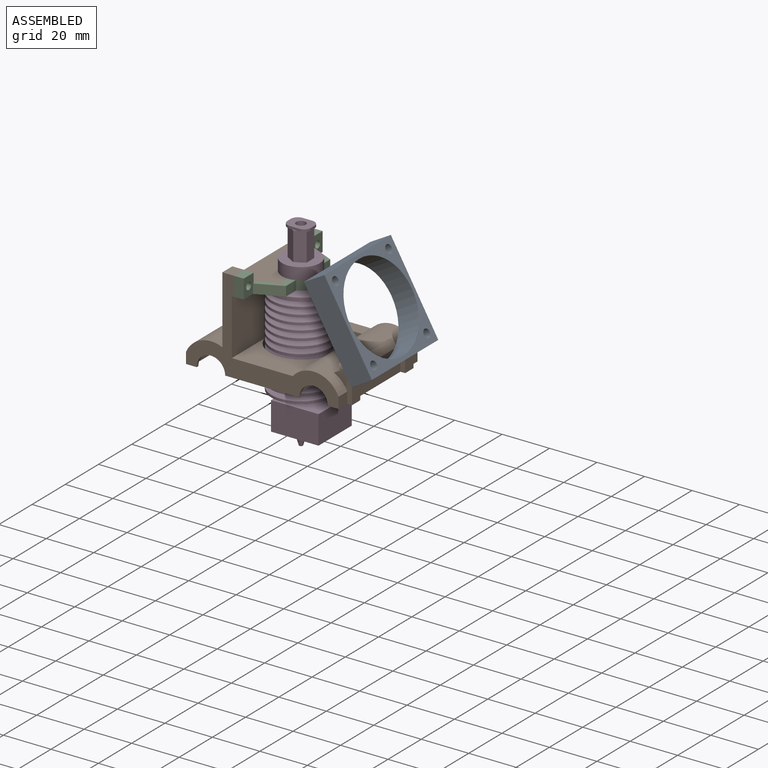
[diagram: assembled view]
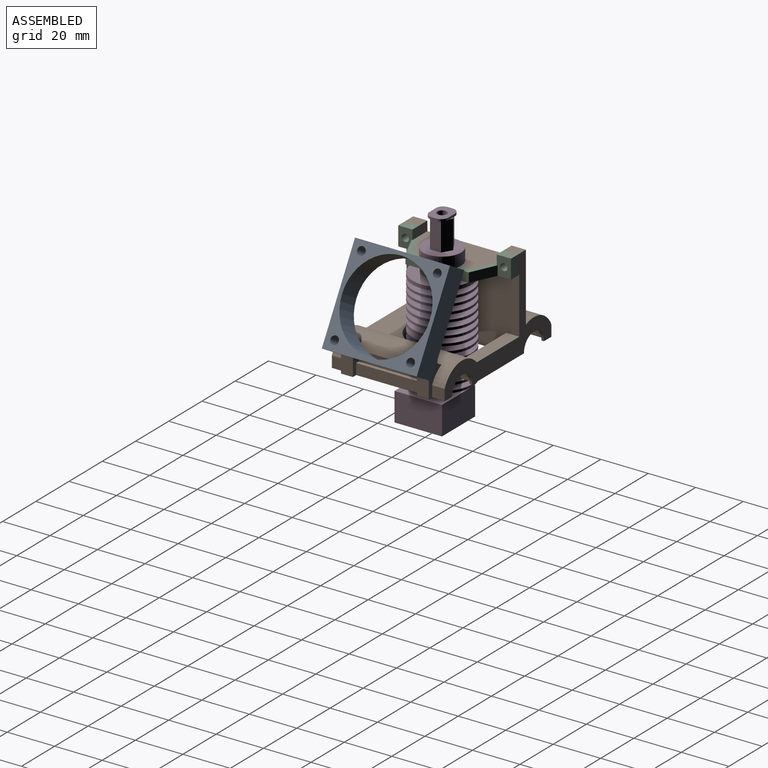
[diagram: assembled view, second angle]
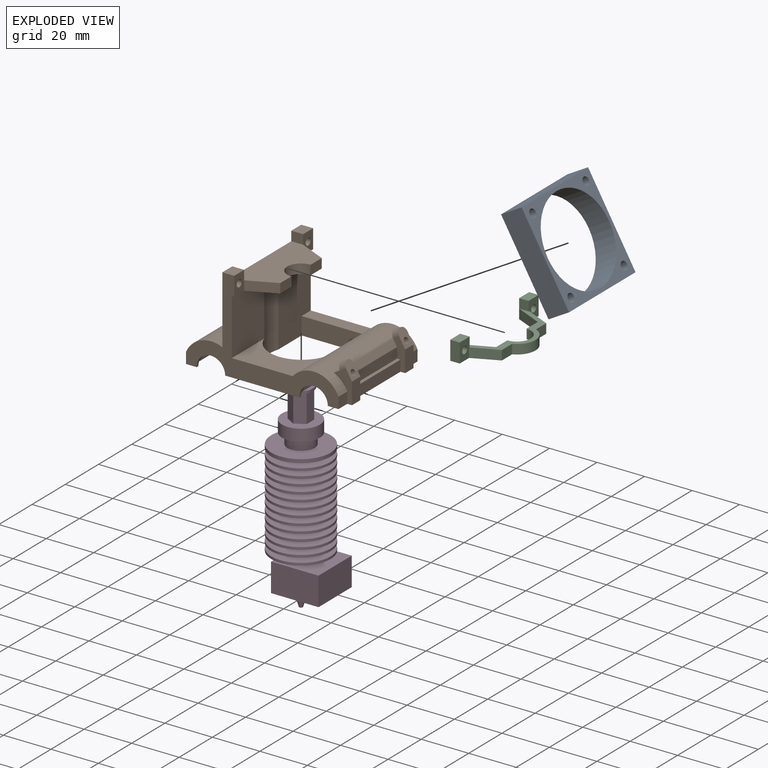
[diagram: exploded view]
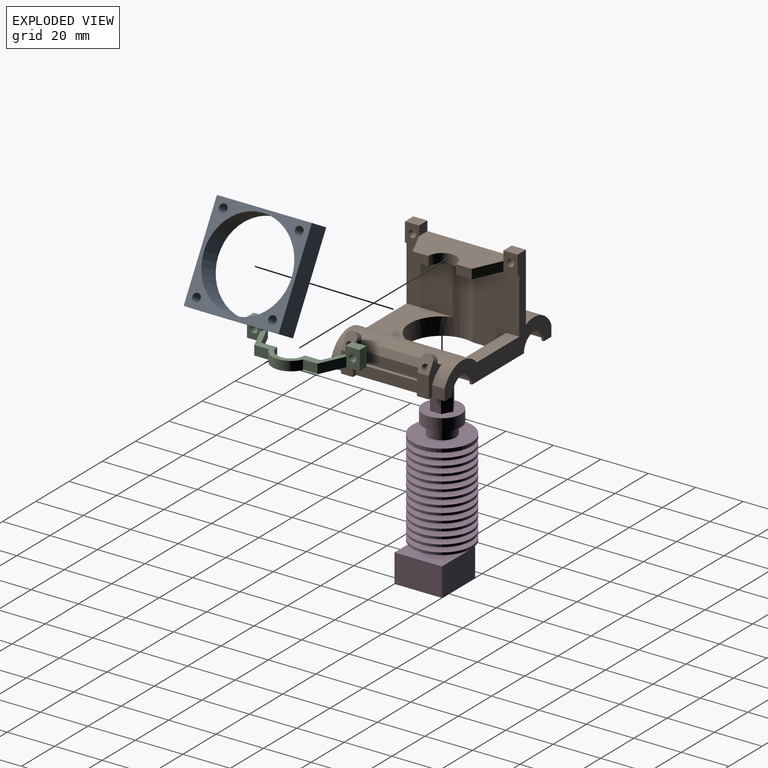
[diagram: exploded view, second angle]
ASSEMBLY  parts=4 mates=3
PART A: 11 faces, bbox 28.7x40x39.6 mm
  f0: plane 39.64x28.66mm, normal (0,-1,0), area 400mm2, adj f1,f6,f9,f10
  f1: plane 40x8.66mm, normal (0.5,0,-0.87), area 400mm2, adj f0,f2,f9,f10
  f2: plane 39.64x28.66mm, normal (0,1,0), area 400mm2, adj f1,f6,f9,f10
  f3: cylinder r=1.75mm len=10.41mm, axis (-0.87,0,-0.5), area 110mm2, adj f9,f10
  f4: cylinder r=18.5mm len=37.04mm, axis (-0.87,0,-0.5), area 1162.4mm2, adj f9,f10
  f5: cylinder r=1.75mm len=10.41mm, axis (-0.87,0,-0.5), area 110mm2, adj f9,f10
  f6: plane 40x8.66mm, normal (-0.5,0,0.87), area 400mm2, adj f0,f2,f9,f10
  f7: cylinder r=1.75mm len=10.41mm, axis (-0.87,0,-0.5), area 110mm2, adj f9,f10
  f8: cylinder r=1.75mm len=10.41mm, axis (-0.87,0,-0.5), area 110mm2, adj f9,f10
  f9: plane 40x34.64mm, normal (0.87,0,0.5), area 486.3mm2, adj f0,f1,f2,f3,f4,f5,f6,f7
  f10: plane 40x34.64mm, normal (-0.87,0,-0.5), area 486.3mm2, adj f0,f1,f2,f3,f4,f5,f6,f7
PART B: 78 faces, bbox 66.3x47.5x39 mm
  f0: plane 27x4.6mm, normal (1,0,0), area 124.2mm2, adj f26,f61,f62,f77
  f1: plane 37x2.48mm, normal (-0.5,0,0.87), area 106.2mm2, adj f2,f63,f64,f67,f73,f75
  f2: cylinder r=11.5mm len=47.5mm, axis (0,1,0), area 797.4mm2, adj f1,f3,f11,f12,f15,f28,f36,f63
  f3: plane 64.25x39mm, normal (0,1,0), area 585.9mm2, adj f2,f8,f12,f13,f14,f18,f19,f20
  f4: plane 9x5mm, normal (1,0,0), area 45mm2, adj f7,f26,f62,f64
  f5: plane 9x5mm, normal (1,0,0), area 45mm2, adj f6,f26,f61,f63
  f6: plane 6.52x5mm, normal (0.87,0,0.5), area 30mm2, adj f5,f61,f63,f70,f74
  f7: plane 6.5x5mm, normal (0.87,0,0.5), area 29.9mm2, adj f4,f62,f64,f68,f72
  f8: plane 47.5x28.55mm, normal (-1,0,0), area 1161.8mm2, adj f3,f9,f11,f20,f41,f42,f43,f44
  f9: plane 35.5x16.5mm, normal (0,0,1), area 472.5mm2, adj f8,f10,f17,f27,f38,f39,f42,f43
  f10: plane 6.7x4mm, normal (1,0,0), area 26.8mm2, adj f9,f19,f27,f38
  f11: plane 64.25x39mm, normal (0,-1,0), area 585.9mm2, adj f2,f8,f15,f16,f19,f20,f21,f22
  f12: plane 25.64x5.53mm, normal (0,0,1), area 141.7mm2, adj f2,f3,f18,f35
  f13: cylinder r=6mm len=12mm, axis (0,1,0), area 18.8mm2, adj f3,f22,f24,f34
  f14: cylinder r=6mm len=12mm, axis (0,1,0), area 18.8mm2, adj f3,f24,f26,f31
  f15: plane 25.64x19.53mm, normal (0,0,1), area 326.6mm2, adj f2,f11,f16,f28
  f16: plane 23.6x19.53mm, normal (1,0,0), area 460.8mm2, adj f11,f15,f19,f28
  f17: plane 6.7x4mm, normal (1,0,0), area 26.8mm2, adj f9,f19,f27,f39
  f18: plane 31x19.53mm, normal (1,0,0), area 564.4mm2, adj f3,f12,f19,f24,f28,f35
  f19: plane 47.5x13.18mm, normal (0,0,-1), area 346.4mm2, adj f3,f10,f11,f16,f17,f18,f27,f28
  f20: cylinder r=11.5mm len=47.5mm, axis (0,1,0), area 863.9mm2, adj f3,f8,f11,f21
  f21: plane 47.5x4.69mm, normal (-1,0,0), area 222.8mm2, adj f3,f11,f20,f22
  f22: plane 47.5x4.5mm, normal (0,0,-1), area 122.8mm2, adj f3,f11,f13,f21,f23,f32,f33,f34
  f23: cylinder r=6mm len=12mm, axis (0,1,0), area 18.8mm2, adj f11,f22,f24,f33
  f24: plane 47.5x31.25mm, normal (0,0,-1), area 544.9mm2, adj f3,f11,f13,f14,f18,f23,f25,f28
  f25: cylinder r=6mm len=12mm, axis (0,1,0), area 18.8mm2, adj f11,f24,f26,f30
  f26: plane 47.5x6.5mm, normal (0,0,-1), area 142.8mm2, adj f0,f3,f4,f5,f11,f14,f25,f29
  f27: cylinder r=5.8mm len=11.6mm, axis (0,0,1), area 72.9mm2, adj f9,f10,f17,f19
  f28: cylinder r=13.5mm len=31mm, axis (0,0,-1), area 584.5mm2, adj f2,f15,f16,f18,f19,f24,f36
  f29: cylinder r=8mm len=45.5mm, axis (0,1,0), area 1143.5mm2, adj f24,f26,f30,f31
  f30: plane 16x8mm, normal (0,1,0), area 44mm2, adj f24,f25,f26,f29
  f31: plane 16x8mm, normal (0,-1,0), area 44mm2, adj f14,f24,f26,f29
  f32: cylinder r=8mm len=45.5mm, axis (0,1,0), area 1143.5mm2, adj f22,f24,f33,f34
  f33: plane 16x8mm, normal (0,1,0), area 44mm2, adj f22,f23,f24,f32
  f34: plane 16x8mm, normal (0,-1,0), area 44mm2, adj f13,f22,f24,f32
  f35: plane 25.64x7.4mm, normal (0,-1,0), area 189.8mm2, adj f12,f18,f24,f36
  f36: plane 14x7.4mm, normal (-1,0,0), area 103.6mm2, adj f2,f24,f28,f35
  f37: plane 8x6mm, normal (1,0,0), area 40.9mm2, adj f3,f19,f38,f41,f42,f60
  f38: plane 11.5x5.25mm, normal (0.42,0.91,0), area 50.6mm2, adj f9,f10,f19,f37
  f39: plane 11.5x5.25mm, normal (0.42,-0.91,0), area 50.6mm2, adj f9,f17,f19,f40
  f40: plane 8x6mm, normal (1,0,0), area 40.9mm2, adj f11,f19,f39,f43,f44,f59
  f41: plane 6x5mm, normal (0,0,1), area 30mm2, adj f3,f8,f37,f42
  f42: plane 5x4mm, normal (0,-1,0), area 20mm2, adj f8,f9,f37,f41
  f43: plane 5x4mm, normal (0,1,0), area 20mm2, adj f8,f9,f40,f44
  f44: plane 6x5mm, normal (0,0,1), area 30mm2, adj f8,f11,f40,f43
  f45: plane 2.75x2mm, normal (0,0.5,-0.87), area 6.4mm2, adj f8,f46,f50,f51
  f46: plane 2.75x2mm, normal (0,-0.5,-0.87), area 6.4mm2, adj f8,f45,f47,f51
  f47: plane 3.18x2mm, normal (0,-1,0), area 6.4mm2, adj f8,f46,f48,f51
  f48: plane 2.75x2mm, normal (0,-0.5,0.87), area 6.4mm2, adj f8,f47,f49,f51
  f49: plane 2.75x2mm, normal (0,0.5,0.87), area 6.4mm2, adj f8,f48,f50,f51
  f50: plane 3.18x2mm, normal (0,1,0), area 6.4mm2, adj f8,f45,f49,f51
  f51: plane 6.35x5.5mm, normal (-1,0,0), area 19.1mm2, adj f45,f46,f47,f48,f49,f50,f60
  f52: plane 3.18x2mm, normal (0,1,-0.01), area 6.4mm2, adj f8,f53,f57,f58
  f53: plane 2.77x2mm, normal (0,0.49,-0.87), area 6.4mm2, adj f8,f52,f54,f58
  f54: plane 2.73x2mm, normal (0,-0.51,-0.86), area 6.4mm2, adj f8,f53,f55,f58
  f55: plane 3.18x2mm, normal (0,-1,0.01), area 6.4mm2, adj f8,f54,f56,f58
  f56: plane 2.77x2mm, normal (0,-0.49,0.87), area 6.4mm2, adj f8,f55,f57,f58
  f57: plane 2.73x2mm, normal (0,0.51,0.86), area 6.4mm2, adj f8,f52,f56,f58
  f58: plane 6.35x5.54mm, normal (-1,0,0), area 19.1mm2, adj f52,f53,f54,f55,f56,f57,f59
  f59: cylinder r=1.5mm len=3mm, axis (-1,0,0), area 28.3mm2, adj f40,f58
  f60: cylinder r=1.5mm len=3mm, axis (-1,0,0), area 28.3mm2, adj f37,f51
  f61: plane 13.33x5.1mm, normal (0,-1,0), area 36.8mm2, adj f0,f5,f6,f26,f67,f74,f76,f77
  f62: plane 13.33x5.1mm, normal (0,1,0), area 36.8mm2, adj f0,f4,f7,f26,f67,f72,f76,f77
  f63: plane 13.33x7.58mm, normal (0,1,0), area 42.3mm2, adj f1,f2,f5,f6,f26,f66,f74
  f64: plane 13.33x7.58mm, normal (0,-1,0), area 42.3mm2, adj f1,f2,f4,f7,f26,f65,f72
  f65: plane 5.25x4.69mm, normal (1,0,0), area 24.6mm2, adj f2,f11,f26,f64
  f66: plane 5.25x4.69mm, normal (1,0,0), area 24.6mm2, adj f2,f3,f26,f63
  f67: plane 27x2.83mm, normal (0.87,0,0.5), area 88.2mm2, adj f1,f61,f62,f76
  f68: cylinder r=1.25mm len=3.85mm, axis (0.87,0,0.5), area 23.6mm2, adj f7,f69
  f69: plane 2.5x2.17mm, normal (0.87,0,0.5), area 4.9mm2, adj f68
  f70: cylinder r=1.25mm len=3.85mm, axis (0.87,0,0.5), area 23.6mm2, adj f6,f71
  f71: plane 2.5x2.17mm, normal (0.87,0,0.5), area 4.9mm2, adj f70
  f72: cylinder r=2.5mm len=5mm, axis (0.87,0,0.5), area 23.6mm2, adj f7,f62,f64,f73
  f73: plane 5x2.17mm, normal (-0.87,0,-0.5), area 9.8mm2, adj f1,f72
  f74: cylinder r=2.5mm len=5mm, axis (0.87,0,0.5), area 23.7mm2, adj f6,f61,f63,f75
  f75: plane 5x2.19mm, normal (-0.87,0,-0.5), area 10mm2, adj f1,f74
  f76: plane 27x4.4mm, normal (1,0,0), area 118.8mm2, adj f61,f62,f67,f77
  f77: plane 27x1.46mm, normal (0,0,1), area 39.5mm2, adj f0,f61,f62,f76
PART C: 24 faces, bbox 19.3x47.5x8 mm
  f0: plane 36.25x19.3mm, normal (0,0,1), area 121.5mm2, adj f2,f3,f4,f7,f8,f9,f10,f11
  f1: plane 47.5x19.3mm, normal (0,0,-1), area 169.5mm2, adj f2,f3,f4,f5,f6,f7,f8,f9
  f2: cylinder r=5.8mm len=11.6mm, axis (0,0,1), area 72.9mm2, adj f0,f1,f3,f15
  f3: plane 6.7x4mm, normal (-1,0,0), area 26.8mm2, adj f0,f1,f2,f4
  f4: plane 11.5x5.25mm, normal (-0.42,0.91,0), area 50.6mm2, adj f0,f1,f3,f5
  f5: plane 8x6mm, normal (-1,0,0), area 40.9mm2, adj f1,f4,f6,f18,f19,f23
  f6: plane 8x4mm, normal (0,-1,0), area 32mm2, adj f1,f5,f7,f18
  f7: plane 8x6mm, normal (1,0,0), area 39.4mm2, adj f0,f1,f6,f8,f18,f19,f23
  f8: plane 10.5x4.79mm, normal (0.42,-0.91,0), area 46.2mm2, adj f0,f1,f7,f9
  f9: plane 6.13x4mm, normal (1,0,0), area 24.5mm2, adj f0,f1,f8,f10
  f10: cylinder r=7.8mm len=14.4mm, axis (0,0,1), area 73.4mm2, adj f0,f1,f9,f11
  f11: plane 6.13x4mm, normal (1,0,0), area 24.5mm2, adj f0,f1,f10,f12
  f12: plane 10.5x4.79mm, normal (0.42,0.91,0), area 46.2mm2, adj f0,f1,f11,f13
  f13: plane 8x6mm, normal (1,0,0), area 39.4mm2, adj f0,f1,f12,f14,f20,f21,f22
  f14: plane 8x4mm, normal (0,1,0), area 32mm2, adj f1,f13,f16,f20
  f15: plane 6.7x4mm, normal (-1,0,0), area 26.8mm2, adj f0,f1,f2,f17
  f16: plane 8x6mm, normal (-1,0,0), area 40.9mm2, adj f1,f14,f17,f20,f21,f22
  f17: plane 11.5x5.25mm, normal (-0.42,-0.91,0), area 50.6mm2, adj f0,f1,f15,f16
  f18: plane 6x4mm, normal (0,0,1), area 24mm2, adj f5,f6,f7,f19
  f19: plane 4x4mm, normal (0,1,0), area 16mm2, adj f0,f5,f7,f18
  f20: plane 6x4mm, normal (0,0,1), area 24mm2, adj f13,f14,f16,f21
  f21: plane 4x4mm, normal (0,-1,0), area 16mm2, adj f0,f13,f16,f20
  f22: cylinder r=1.5mm len=4mm, axis (1,0,0), area 37.7mm2, adj f13,f16
  f23: cylinder r=1.5mm len=4mm, axis (1,0,0), area 37.7mm2, adj f5,f7
PART D: 89 faces, bbox 26.9x25x84.5 mm
  f0: plane 2.14x0.62mm, normal (0,0,1), area 0.7mm2, adj f69,f70,f82
  f1: plane 20x12mm, normal (-1,0,0), area 240mm2, adj f2,f4,f5,f6
  f2: plane 20x12mm, normal (0,-1,0), area 240mm2, adj f1,f3,f5,f6
  f3: plane 20x12mm, normal (1,0,0), area 240mm2, adj f2,f4,f5,f6
  f4: plane 20x12mm, normal (0,1,0), area 240mm2, adj f1,f3,f5,f6
  f5: plane 20x20mm, normal (0,0,1), area 392mm2, adj f1,f2,f3,f4,f7
  f6: plane 20x20mm, normal (0,0,-1), area 372.6mm2, adj f1,f2,f3,f4,f68
  f7: cylinder r=1.6mm len=3.2mm, axis (0,0,-1), area 20.1mm2, adj f5,f8
  f8: plane 25x25mm, normal (0,0,-1), area 482.8mm2, adj f7,f9
  f9: cylinder r=12.5mm len=25mm, axis (0,0,1), area 78.5mm2, adj f8,f10
  f10: plane 25x25mm, normal (0,0,1), area 387.4mm2, adj f9,f11
  f11: cylinder r=5.74mm len=11.48mm, axis (0,0,1), area 72.1mm2, adj f10,f12
  f12: plane 25x25mm, normal (0,0,-1), area 387.4mm2, adj f11,f13
  f13: cylinder r=12.5mm len=25mm, axis (0,0,1), area 78.5mm2, adj f12,f14
  f14: plane 25x25mm, normal (0,0,1), area 387.4mm2, adj f13,f15
  f15: cylinder r=5.74mm len=11.48mm, axis (0,0,1), area 72.1mm2, adj f14,f16
  f16: plane 25x25mm, normal (0,0,-1), area 387.4mm2, adj f15,f17
  f17: cylinder r=12.5mm len=25mm, axis (0,0,1), area 78.5mm2, adj f16,f18
  f18: plane 25x25mm, normal (0,0,1), area 387.4mm2, adj f17,f19
  f19: cylinder r=5.74mm len=11.48mm, axis (0,0,1), area 72.1mm2, adj f18,f20
  f20: plane 25x25mm, normal (0,0,-1), area 387.4mm2, adj f19,f21
  f21: cylinder r=12.5mm len=25mm, axis (0,0,1), area 78.5mm2, adj f20,f22
  f22: plane 25x25mm, normal (0,0,1), area 387.4mm2, adj f21,f23
  f23: cylinder r=5.74mm len=11.48mm, axis (0,0,1), area 72.1mm2, adj f22,f24
  f24: plane 25x25mm, normal (0,0,-1), area 387.4mm2, adj f23,f25
  f25: cylinder r=12.5mm len=25mm, axis (0,0,1), area 78.5mm2, adj f24,f26
  f26: plane 25x25mm, normal (0,0,1), area 387.4mm2, adj f25,f27
  f27: cylinder r=5.74mm len=11.48mm, axis (0,0,1), area 72.1mm2, adj f26,f28
  f28: plane 25x25mm, normal (0,0,-1), area 387.4mm2, adj f27,f29
  f29: cylinder r=12.5mm len=25mm, axis (0,0,1), area 78.5mm2, adj f28,f30
  f30: plane 25x25mm, normal (0,0,1), area 387.4mm2, adj f29,f31
  f31: cylinder r=5.74mm len=11.48mm, axis (0,0,1), area 72.1mm2, adj f30,f32
  f32: plane 25x25mm, normal (0,0,-1), area 387.4mm2, adj f31,f33
  f33: cylinder r=12.5mm len=25mm, axis (0,0,1), area 78.5mm2, adj f32,f34
  f34: plane 25x25mm, normal (0,0,1), area 387.4mm2, adj f33,f35
  f35: cylinder r=5.74mm len=11.48mm, axis (0,0,1), area 72.1mm2, adj f34,f36
  f36: plane 25x25mm, normal (0,0,-1), area 387.4mm2, adj f35,f37
  f37: cylinder r=12.5mm len=25mm, axis (0,0,1), area 78.5mm2, adj f36,f38
  f38: plane 25x25mm, normal (0,0,1), area 387.4mm2, adj f37,f39
  f39: cylinder r=5.74mm len=11.48mm, axis (0,0,1), area 72.1mm2, adj f38,f40
  f40: plane 25x25mm, normal (0,0,-1), area 387.4mm2, adj f39,f41
  f41: cylinder r=12.5mm len=25mm, axis (0,0,1), area 78.5mm2, adj f40,f42
  f42: plane 25x25mm, normal (0,0,1), area 387.4mm2, adj f41,f43
  f43: cylinder r=5.74mm len=11.48mm, axis (0,0,1), area 72.1mm2, adj f42,f44
  f44: plane 25x25mm, normal (0,0,-1), area 387.4mm2, adj f43,f45
  f45: cylinder r=12.5mm len=25mm, axis (0,0,1), area 78.5mm2, adj f44,f46
  f46: plane 25x25mm, normal (0,0,1), area 387.4mm2, adj f45,f47
  f47: cylinder r=5.74mm len=11.48mm, axis (0,0,1), area 72.1mm2, adj f46,f48
  f48: plane 25x25mm, normal (0,0,-1), area 387.4mm2, adj f47,f49
  f49: cylinder r=12.5mm len=25mm, axis (0,0,1), area 78.5mm2, adj f48,f50
  f50: plane 25x25mm, normal (0,0,1), area 387.4mm2, adj f49,f51
  f51: cylinder r=5.74mm len=11.48mm, axis (0,0,1), area 72.1mm2, adj f50,f52
  f52: plane 25x25mm, normal (0,0,-1), area 387.4mm2, adj f51,f53
  f53: cylinder r=12.5mm len=25mm, axis (0,0,1), area 78.5mm2, adj f52,f54
  f54: plane 25x25mm, normal (0,0,1), area 387.4mm2, adj f53,f55
  f55: cylinder r=5.74mm len=11.48mm, axis (0,0,1), area 72.1mm2, adj f54,f56
  f56: plane 25x25mm, normal (0,0,-1), area 387.4mm2, adj f55,f57
  f57: cylinder r=12.5mm len=25mm, axis (0,0,1), area 78.5mm2, adj f56,f58
  f58: plane 25x25mm, normal (0,0,1), area 387.4mm2, adj f57,f59
  f59: cylinder r=5.74mm len=11.48mm, axis (0,0,1), area 72.1mm2, adj f58,f60
  f60: plane 25x25mm, normal (0,0,-1), area 387.4mm2, adj f59,f61
  f61: cylinder r=12.5mm len=25mm, axis (0,0,1), area 117.8mm2, adj f60,f62
  f62: plane 25x25mm, normal (0,0,1), area 387.4mm2, adj f61,f63
  f63: cylinder r=5.74mm len=11.48mm, axis (0,0,1), area 162.3mm2, adj f62,f64
  f64: plane 15.98x15.98mm, normal (0,0,-1), area 97.1mm2, adj f63,f65
  f65: cylinder r=7.99mm len=15.98mm, axis (0,0,1), area 251mm2, adj f64,f66
  f66: plane 15.98x15.98mm, normal (0,0,1), area 145.1mm2, adj f65,f69,f70,f71,f72,f73,f74
  f67: plane 1.5x1.5mm, normal (0,0,-1), area 1.8mm2, adj f68
  f68: cone r=2.95mm half-angle=16.4deg, axis (0,0,1), area 90.9mm2, adj f6,f67
  f69: plane 12x4mm, normal (0.5,0.87,0), area 55.4mm2, adj f0,f66,f70,f74,f86
  f70: plane 12x4mm, normal (-0.5,0.87,0), area 55.4mm2, adj f0,f66,f69,f71,f76
  f71: plane 12x4.62mm, normal (-1,0,0), area 55.4mm2, adj f66,f70,f72,f76
  f72: plane 12x4mm, normal (-0.5,-0.87,0), area 55.4mm2, adj f66,f71,f73,f75,f76
  f73: plane 12x4mm, normal (0.5,-0.87,0), area 55.4mm2, adj f66,f72,f74,f75,f86
  f74: plane 12x4.62mm, normal (1,0,0), area 55.4mm2, adj f66,f69,f73,f86
  f75: plane 2.14x0.62mm, normal (0,0,1), area 0.7mm2, adj f72,f73,f78
  f76: plane 8x3.93mm, normal (0,0,-1), area 9.1mm2, adj f70,f71,f72,f77,f78,f82,f83,f84
  f77: cylinder r=3mm len=3mm, axis (0,0,-1), area 4.7mm2, adj f76,f78,f84,f85
  f78: plane 4x1mm, normal (0,-1,0), area 4mm2, adj f75,f76,f77,f79,f85,f86
  f79: cylinder r=3mm len=3mm, axis (0,0,-1), area 4.7mm2, adj f78,f80,f85,f86
  f80: plane 2x1mm, normal (1,0,0), area 2mm2, adj f79,f81,f85,f86
  f81: cylinder r=3mm len=3mm, axis (0,0,-1), area 4.7mm2, adj f80,f82,f85,f86
  f82: plane 4x1mm, normal (0,1,0), area 4mm2, adj f0,f76,f81,f83,f85,f86
  f83: cylinder r=3mm len=3mm, axis (0,0,-1), area 4.7mm2, adj f76,f82,f84,f85
  f84: plane 2x1mm, normal (-1,0,0), area 2mm2, adj f76,f77,f83,f85
  f85: plane 10x8mm, normal (0,0,1), area 59.7mm2, adj f77,f78,f79,f80,f81,f82,f83,f84
  f86: plane 8x3.93mm, normal (0,0,-1), area 9.1mm2, adj f69,f73,f74,f78,f79,f80,f81,f82
  f87: cylinder r=2mm len=50.4mm, axis (0,0,1), area 633.3mm2, adj f85,f88
  f88: plane 4x4mm, normal (0,0,1), area 12.6mm2, adj f87
PLACE A t=(-74.33,25.32,14.23)mm
PLACE B t=(-75.08,25.32,15.53)mm fixed
PLACE C t=(-75.08,25.32,15.53)mm
PLACE D t=(6.93,51.53,-8.47)mm
MATE fastened C.f22 <-> B.f60  axis (-1,0,0) through (-65.28,22.32,50.53)mm
MATE fastened D.f7 <-> B.f27  axis (0,0,-1) through (-53.78,1.57,50.53)mm
MATE fastened A.f7 <-> B.f68  axis (-0.87,0,-0.5) through (-20.58,-14.43,26.7)mm
